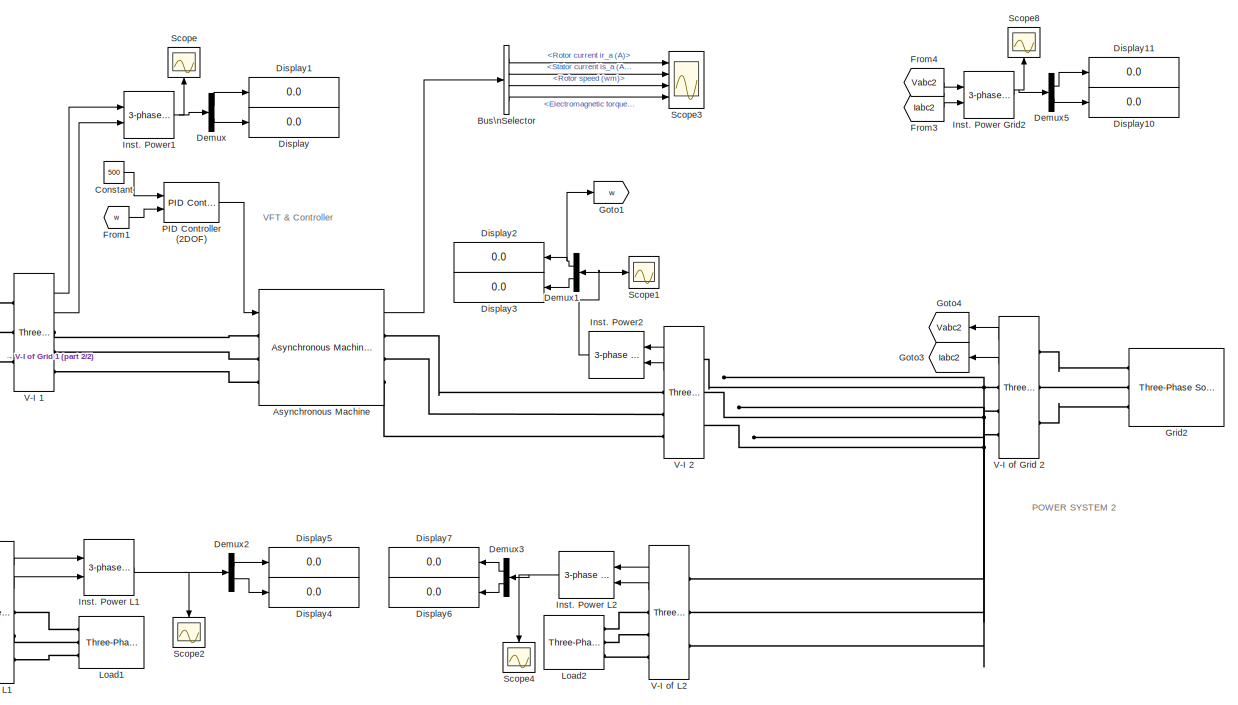
[diagram: root canvas - part 1/2, right side, full height]
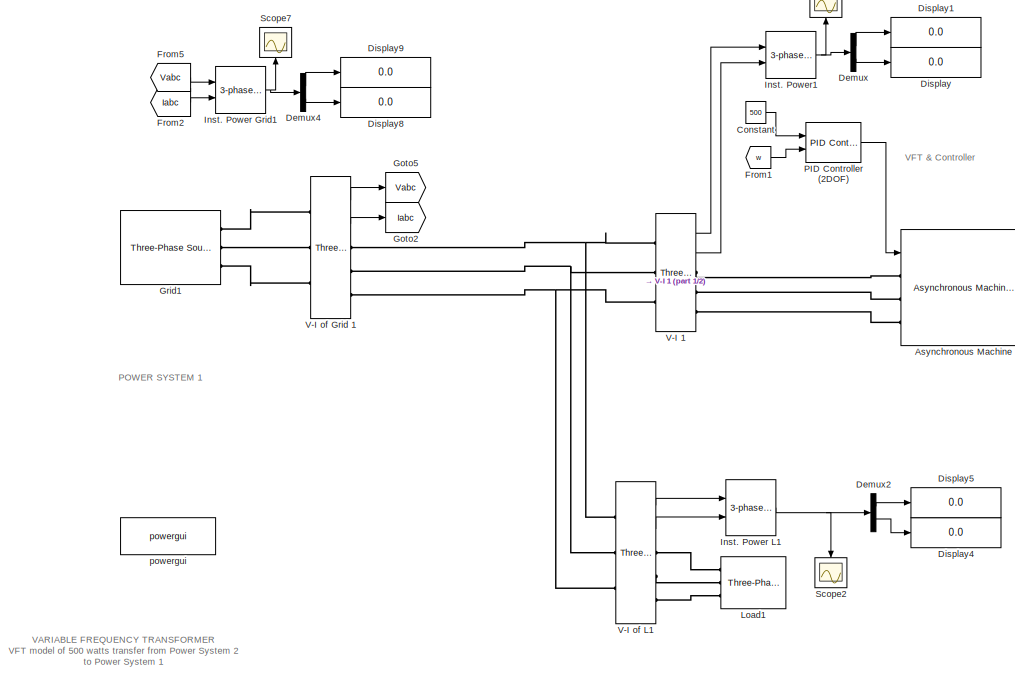
[diagram: root canvas - part 2/2, left side, full height]
MODEL VFT
KIND model
BLOCK [Reference] Asynchronous Machine  REF=powerlib/Machines/Asynchronous Machine\nSI Units
  AttributesFormatString = \\n
  FunctionWithSeparateData = off
  InitialConditions = [1 0 0 0 0 0 0 0]
  IterativeModel = Forward Euler
  Lm = 0.2037
  LoadFlowParameters = 1492000
  Mechanical = [ 63.87 0 2]
  MechanicalLoad = Speed w
  NominalParameters = [3730 220 60 ]
  PolePairs = 2
  Ports = [1, 1, 0, 0, 0, 3, 3]
  PresetModel = No
  RTWMemSecDataConstants = Inherit from model
  RTWMemSecDataInternal = Inherit from model
  RTWMemSecDataParameters = Inherit from model
  RTWMemSecFuncExecute = Inherit from model
  RTWMemSecFuncInitTerm = Inherit from model
  ReferenceFrame = Rotor
  Rotor = [ 1.15 0.005974]
  RotorType = Wound
  SID = 3
  Saturation = [14.03593122, 27.81365428, 53.79336849, 72.68890987, 97.98006896, 148.6815601, 215.7428561, 302.9841135, 428.7778367 ; 230, 322, 414, 460, 506, 552, 598, 644, 690]
  ShowDetailedParameters = on
  ShowPortLabels = FromPortIcon
  SimulateSaturation = off
  SourceBlock = powerlib/Machines/Asynchronous Machine\nSI Units
  SourceProductBaseCode = PS
  SourceProductName = Simscape Electrical
  SourceType = Asynchronous Machine
  Stator = [ 1.115 0.005974]
  SystemSampleTime = -1
  TsBlock = -1
  TsPowergui = 0
  Units = SI
BLOCK [BusSelector] Bus\nSelector
  OutputAsBus = off
  OutputSignals = Rotor measurements.Rotor current ir_a (A),Stator measurements.Stator current is_a (A),Mechanical.Rotor speed (wm),Mechanical.Electromagnetic torque Te (N*m)
  Ports = [1, 4]
  SID = 4
BLOCK [Constant] Constant
  SID = 71
  Value = 500
BLOCK [Demux] Demux
  DisplayOption = bar
  Outputs = 2
  Ports = [1, 2]
  SID = 5
BLOCK [Demux] Demux1
  DisplayOption = bar
  Outputs = 2
  Ports = [1, 2]
  SID = 6
BLOCK [Demux] Demux2
  DisplayOption = bar
  Outputs = 2
  Ports = [1, 2]
  SID = 7
BLOCK [Demux] Demux3
  DisplayOption = bar
  Outputs = 2
  Ports = [1, 2]
  SID = 8
BLOCK [Demux] Demux4
  DisplayOption = bar
  Outputs = 2
  Ports = [1, 2]
  SID = 9
BLOCK [Demux] Demux5
  DisplayOption = bar
  Outputs = 2
  Ports = [1, 2]
  SID = 10
BLOCK [Display] Display
  Decimation = 1
  Ports = [1]
  SID = 11
BLOCK [Display] Display1
  Decimation = 1
  Ports = [1]
  SID = 12
BLOCK [Display] Display10
  Decimation = 1
  Ports = [1]
  SID = 13
BLOCK [Display] Display11
  Decimation = 1
  Ports = [1]
  SID = 14
BLOCK [Display] Display2
  Decimation = 1
  Ports = [1]
  SID = 16
BLOCK [Display] Display3
  Decimation = 1
  Ports = [1]
  SID = 17
BLOCK [Display] Display4
  Decimation = 1
  Ports = [1]
  SID = 18
BLOCK [Display] Display5
  Decimation = 1
  Ports = [1]
  SID = 19
BLOCK [Display] Display6
  Decimation = 1
  Ports = [1]
  SID = 20
BLOCK [Display] Display7
  Decimation = 1
  Ports = [1]
  SID = 21
BLOCK [Display] Display8
  Decimation = 1
  Ports = [1]
  SID = 22
BLOCK [Display] Display9
  Decimation = 1
  Ports = [1]
  SID = 23
BLOCK [From] From1
  GotoTag = w
  SID = 70
BLOCK [From] From2
  GotoTag = Iabc
  SID = 26
BLOCK [From] From3
  GotoTag = Iabc2
  SID = 27
BLOCK [From] From4
  GotoTag = Vabc2
  SID = 28
BLOCK [From] From5
  GotoTag = Vabc
  SID = 29
BLOCK [Goto] Goto1
  GotoTag = w
  SID = 74
BLOCK [Goto] Goto2
  GotoTag = Iabc
  SID = 34
BLOCK [Goto] Goto3
  GotoTag = Iabc2
  SID = 35
BLOCK [Goto] Goto4
  GotoTag = Vabc2
  SID = 36
BLOCK [Goto] Goto5
  GotoTag = Vabc
  SID = 37
BLOCK [Reference] Grid1  REF=powerlib/Electrical\nSources/Three-Phase Source
  BaseVoltage = 25e3
  Frequency = 50
  FunctionWithSeparateData = off
  Inductance = 0
  InternalConnection = Yg
  PhaseAngle = 0
  Ports = [0, 0, 0, 0, 0, 0, 3]
  RTWMemSecDataConstants = Inherit from model
  RTWMemSecDataInternal = Inherit from model
  RTWMemSecDataParameters = Inherit from model
  RTWMemSecFuncExecute = Inherit from model
  RTWMemSecFuncInitTerm = Inherit from model
  Resistance = 0.01
  SID = 38
  ShortCircuitLevel = 100e6
  ShowPortLabels = FromPortIcon
  SourceBlock = powerlib/Electrical\nSources/Three-Phase Source
  SourceProductBaseCode = PS
  SourceProductName = Simscape Electrical
  SourceType = Three-Phase Source
  SpecifyImpedance = off
  SystemSampleTime = -1
  Voltage = 220
  XRratio = 7
BLOCK [Reference] Grid2  REF=powerlib/Electrical\nSources/Three-Phase Source
  BaseVoltage = 25e3
  Frequency = 50
  FunctionWithSeparateData = off
  Inductance = 0
  InternalConnection = Yg
  PhaseAngle = 0
  Ports = [0, 0, 0, 0, 0, 0, 3]
  RTWMemSecDataConstants = Inherit from model
  RTWMemSecDataInternal = Inherit from model
  RTWMemSecDataParameters = Inherit from model
  RTWMemSecFuncExecute = Inherit from model
  RTWMemSecFuncInitTerm = Inherit from model
  Resistance = 0.01
  SID = 39
  ShortCircuitLevel = 100e6
  ShowPortLabels = FromPortIcon
  SourceBlock = powerlib/Electrical\nSources/Three-Phase Source
  SourceProductBaseCode = PS
  SourceProductName = Simscape Electrical
  SourceType = Three-Phase Source
  SpecifyImpedance = off
  SystemSampleTime = -1
  Voltage = 220
  XRratio = 7
BLOCK [Reference] Inst. Power Grid1  REF=powerlib_extras/Measurements/3-phase \nInstantaneous \nActive & Reactive Power
  FunctionWithSeparateData = off
  Ports = [2, 1]
  RTWMemSecDataConstants = Inherit from model
  RTWMemSecDataInternal = Inherit from model
  RTWMemSecDataParameters = Inherit from model
  RTWMemSecFuncExecute = Inherit from model
  RTWMemSecFuncInitTerm = Inherit from model
  SID = 40
  ShowPortLabels = FromPortIcon
  SourceBlock = powerlib_extras/Measurements/3-phase \nInstantaneous \nActive & Reactive Power
  SourceProductBaseCode = PS
  SourceProductName = Simscape Electrical
  SourceType = 3-phase instantaneous active and reactive power
  SystemSampleTime = -1
BLOCK [Reference] Inst. Power Grid2  REF=powerlib_extras/Measurements/3-phase \nInstantaneous \nActive & Reactive Power
  FunctionWithSeparateData = off
  Ports = [2, 1]
  RTWMemSecDataConstants = Inherit from model
  RTWMemSecDataInternal = Inherit from model
  RTWMemSecDataParameters = Inherit from model
  RTWMemSecFuncExecute = Inherit from model
  RTWMemSecFuncInitTerm = Inherit from model
  SID = 41
  ShowPortLabels = FromPortIcon
  SourceBlock = powerlib_extras/Measurements/3-phase \nInstantaneous \nActive & Reactive Power
  SourceProductBaseCode = PS
  SourceProductName = Simscape Electrical
  SourceType = 3-phase instantaneous active and reactive power
  SystemSampleTime = -1
BLOCK [Reference] Inst. Power L1  REF=powerlib_extras/Measurements/3-phase \nInstantaneous \nActive & Reactive Power
  FunctionWithSeparateData = off
  Ports = [2, 1]
  RTWMemSecDataConstants = Inherit from model
  RTWMemSecDataInternal = Inherit from model
  RTWMemSecDataParameters = Inherit from model
  RTWMemSecFuncExecute = Inherit from model
  RTWMemSecFuncInitTerm = Inherit from model
  SID = 42
  ShowPortLabels = FromPortIcon
  SourceBlock = powerlib_extras/Measurements/3-phase \nInstantaneous \nActive & Reactive Power
  SourceProductBaseCode = PS
  SourceProductName = Simscape Electrical
  SourceType = 3-phase instantaneous active and reactive power
  SystemSampleTime = -1
BLOCK [Reference] Inst. Power L2  REF=powerlib_extras/Measurements/3-phase \nInstantaneous \nActive & Reactive Power
  FunctionWithSeparateData = off
  Ports = [2, 1]
  RTWMemSecDataConstants = Inherit from model
  RTWMemSecDataInternal = Inherit from model
  RTWMemSecDataParameters = Inherit from model
  RTWMemSecFuncExecute = Inherit from model
  RTWMemSecFuncInitTerm = Inherit from model
  SID = 43
  ShowPortLabels = FromPortIcon
  SourceBlock = powerlib_extras/Measurements/3-phase \nInstantaneous \nActive & Reactive Power
  SourceProductBaseCode = PS
  SourceProductName = Simscape Electrical
  SourceType = 3-phase instantaneous active and reactive power
  SystemSampleTime = -1
BLOCK [Reference] Inst. Power1  REF=powerlib_extras/Measurements/3-phase \nInstantaneous \nActive & Reactive Power
  FunctionWithSeparateData = off
  Ports = [2, 1]
  RTWMemSecDataConstants = Inherit from model
  RTWMemSecDataInternal = Inherit from model
  RTWMemSecDataParameters = Inherit from model
  RTWMemSecFuncExecute = Inherit from model
  RTWMemSecFuncInitTerm = Inherit from model
  SID = 44
  ShowPortLabels = FromPortIcon
  SourceBlock = powerlib_extras/Measurements/3-phase \nInstantaneous \nActive & Reactive Power
  SourceProductBaseCode = PS
  SourceProductName = Simscape Electrical
  SourceType = 3-phase instantaneous active and reactive power
  SystemSampleTime = -1
BLOCK [Reference] Inst. Power2  REF=powerlib_extras/Measurements/3-phase \nInstantaneous \nActive & Reactive Power
  FunctionWithSeparateData = off
  Ports = [2, 1]
  RTWMemSecDataConstants = Inherit from model
  RTWMemSecDataInternal = Inherit from model
  RTWMemSecDataParameters = Inherit from model
  RTWMemSecFuncExecute = Inherit from model
  RTWMemSecFuncInitTerm = Inherit from model
  SID = 45
  ShowPortLabels = FromPortIcon
  SourceBlock = powerlib_extras/Measurements/3-phase \nInstantaneous \nActive & Reactive Power
  SourceProductBaseCode = PS
  SourceProductName = Simscape Electrical
  SourceType = 3-phase instantaneous active and reactive power
  SystemSampleTime = -1
BLOCK [Reference] Load1  REF=powerlib/Elements/Three-Phase\nSeries RLC Load
  ActivePower = 1000
  AttributesFormatString = \\n
  CapacitivePower = 0
  Configuration = Y (grounded)
  InductivePower = 0
  LConnTagsString = A|B|C
  LeftPortType = p1
  Measurements = None
  NominalFrequency = 50
  NominalVoltage = 220
  PhysicalDomain = powersysdomain
  Ports = [0, 0, 0, 0, 0, 3]
  RightPortType = p1
  SID = 46
  SourceBlock = powerlib/Elements/Three-Phase\nSeries RLC Load
  SourceProductBaseCode = PS
  SourceProductName = Simscape Electrical
  SourceType = Three-Phase Series RLC Load
  SubClassName = unknown
BLOCK [Reference] Load2  REF=powerlib/Elements/Three-Phase\nSeries RLC Load
  ActivePower = 4000
  AttributesFormatString = \\n
  CapacitivePower = 0
  Configuration = Y (grounded)
  InductivePower = 0
  LConnTagsString = A|B|C
  LeftPortType = p1
  Measurements = None
  NominalFrequency = 50
  NominalVoltage = 220
  PhysicalDomain = powersysdomain
  Ports = [0, 0, 0, 0, 0, 3]
  RightPortType = p1
  SID = 47
  SourceBlock = powerlib/Elements/Three-Phase\nSeries RLC Load
  SourceProductBaseCode = PS
  SourceProductName = Simscape Electrical
  SourceType = Three-Phase Series RLC Load
  SubClassName = unknown
BLOCK [Reference] PID Controller (2DOF)  REF=simulink/Continuous/PID Controller (2DOF)
  AntiWindupMode = none
  Controller = PID
  D = 0
  DOutDataTypeStr = Inherit: Inherit via internal rule
  DOutMax = []
  DOutMin = []
  DParamDataTypeStr = Inherit: Inherit via internal rule
  DParamMax = []
  DParamMin = []
  ExternalReset = none
  FilterContinuousStateAttributes = ''
  FilterMethod = Forward Euler
  FilterOutDataTypeStr = Inherit: Inherit via internal rule
  FilterOutMax = []
  FilterOutMin = []
  FilterRTWStateStorageClass = Auto
  FilterStateMustResolveToSignalObject = off
  Form = Parallel
  FunctionWithSeparateData = off
  I = .01
  IOutDataTypeStr = Inherit: Inherit via internal rule
  IOutMax = []
  IOutMin = []
  IParamDataTypeStr = Inherit: Inherit via internal rule
  IParamMax = []
  IParamMin = []
  IgnoreLimit = off
  InitialConditionForFilter = 0
  InitialConditionForIntegrator = 0
  InitialConditionSource = internal
  IntegratorContinuousStateAttributes = ''
  IntegratorMethod = Forward Euler
  IntegratorOutDataTypeStr = Inherit: Inherit via internal rule
  IntegratorOutMax = []
  IntegratorOutMin = []
  IntegratorRTWStateStorageClass = Auto
  IntegratorStateMustResolveToSignalObject = off
  Kb = 1
  KbOutDataTypeStr = Inherit: Inherit via internal rule
  KbOutMax = []
  KbOutMin = []
  KbParamDataTypeStr = Inherit: Inherit via internal rule
  KbParamMax = []
  KbParamMin = []
  Kt = 1
  KtOutDataTypeStr = Inherit: Inherit via internal rule
  KtOutMax = []
  KtOutMin = []
  KtParamDataTypeStr = Inherit: Inherit via internal rule
  KtParamMax = []
  KtParamMin = []
  LimitOutput = off
  LinearizeAsGain = on
  LockScale = off
  LowerSaturationLimit = -inf
  N = 100
  NOutDataTypeStr = Inherit: Inherit via internal rule
  NOutMax = []
  NOutMin = []
  NParamDataTypeStr = Inherit: Inherit via internal rule
  NParamMax = []
  NParamMin = []
  P = .1
  POutDataTypeStr = Inherit: Inherit via internal rule
  POutMax = []
  POutMin = []
  PParamDataTypeStr = Inherit: Inherit via internal rule
  PParamMax = []
  PParamMin = []
  Ports = [2, 1]
  RTWMemSecDataConstants = Inherit from model
  RTWMemSecDataInternal = Inherit from model
  RTWMemSecDataParameters = Inherit from model
  RTWMemSecFuncExecute = Inherit from model
  RTWMemSecFuncInitTerm = Inherit from model
  RndMeth = Floor
  SID = 75
  SampleTime = 1
  SaturateOnIntegerOverflow = off
  SaturationOutDataTypeStr = Inherit: Same as input
  SaturationOutMax = []
  SaturationOutMin = []
  ShowPortLabels = FromPortIcon
  SourceBlock = simulink/Continuous/PID Controller (2DOF)
  SourceProductBaseCode = SL
  SourceProductName = Simulink
  SourceType = PID 2dof
  Sum1AccumDataTypeStr = Inherit: Inherit via internal rule
  Sum1OutDataTypeStr = Inherit: Inherit via internal rule
  Sum1OutMax = []
  Sum1OutMin = []
  Sum2AccumDataTypeStr = Inherit: Inherit via internal rule
  Sum2OutDataTypeStr = Inherit: Inherit via internal rule
  Sum2OutMax = []
  Sum2OutMin = []
  Sum3AccumDataTypeStr = Inherit: Inherit via internal rule
  Sum3OutDataTypeStr = Inherit: Inherit via internal rule
  Sum3OutMax = []
  Sum3OutMin = []
  SumAccumDataTypeStr = Inherit: Inherit via internal rule
  SumDAccumDataTypeStr = Inherit: Inherit via internal rule
  SumDOutDataTypeStr = Inherit: Inherit via internal rule
  SumDOutMax = []
  SumDOutMin = []
  SumI1AccumDataTypeStr = Inherit: Inherit via internal rule
  SumI1OutDataTypeStr = Inherit: Inherit via internal rule
  SumI1OutMax = []
  SumI1OutMin = []
  SumI2AccumDataTypeStr = Inherit: Inherit via internal rule
  SumI2OutDataTypeStr = Inherit: Inherit via internal rule
  SumI2OutMax = []
  SumI2OutMin = []
  SumI3AccumDataTypeStr = Inherit: Inherit via internal rule
  SumI3OutDataTypeStr = Inherit: Inherit via internal rule
  SumI3OutMax = []
  SumI3OutMin = []
  SumOutDataTypeStr = Inherit: Inherit via internal rule
  SumOutMax = []
  SumOutMin = []
  SystemSampleTime = -1
  TimeDomain = Continuous-time
  TrackingMode = off
  UpperSaturationLimit = inf
  ZeroCross = on
  b = 1
  bOutDataTypeStr = Inherit: Inherit via internal rule
  bOutMax = []
  bOutMin = []
  bParamDataTypeStr = Inherit: Inherit via internal rule
  bParamMax = []
  bParamMin = []
  c = 1
  cOutDataTypeStr = Inherit: Inherit via internal rule
  cOutMax = []
  cOutMin = []
  cParamDataTypeStr = Inherit: Inherit via internal rule
  cParamMax = []
  cParamMin = []
BLOCK [Scope] Scope
  Floating = off
  NumInputPorts = 1
  Ports = [1]
  SID = 48
  ScopeSpecificationString = C++SS(StrPVP('Location','[5, 48, 1367, 737]'),StrPVP('Open','off'),MxPVP('AxesTitles',54,'struct(''axes1'',''%<SignalLabel>'')'),StrPVP('DataFormat','StructureWithTime'),StrPVP('BlockParamSampleTime','0'),StrPVP('LimitDataPoints','on'),StrPVP('Decimation','1'),StrPVP('BlockParamSampleInput','off'))
BLOCK [Scope] Scope1
  Floating = off
  NumInputPorts = 1
  Ports = [1]
  SID = 49
  ScopeSpecificationString = C++SS(StrPVP('Location','[1, 48, 1367, 737]'),StrPVP('Open','off'),MxPVP('AxesTitles',54,'struct(''axes1'',''%<SignalLabel>'')'),StrPVP('SaveName','ScopeData1'),StrPVP('DataFormat','StructureWithTime'),StrPVP('BlockParamSampleTime','0'),StrPVP('LimitDataPoints','on'),StrPVP('Decimation','1'),StrPVP('BlockParamSampleInput','off'))
BLOCK [Scope] Scope2
  Floating = off
  NumInputPorts = 1
  Ports = [1]
  SID = 50
  ScopeSpecificationString = C++SS(StrPVP('Location','[188, 390, 512, 629]'),StrPVP('Open','off'),MxPVP('AxesTitles',54,'struct(''axes1'',''%<SignalLabel>'')'),StrPVP('SaveName','ScopeData3'),StrPVP('DataFormat','StructureWithTime'),StrPVP('BlockParamSampleTime','0'),StrPVP('LimitDataPoints','on'),StrPVP('Decimation','1'),StrPVP('BlockParamSampleInput','off'))
BLOCK [Scope] Scope3
  Floating = off
  NumInputPorts = 4
  Ports = [4]
  SID = 51
  ScopeSpecificationString = C++SS(StrPVP('Location','[5, 49, 1367, 727]'),StrPVP('Open','off'),MxPVP('AxesTitles',54,'struct(''axes1'',''%<SignalLabel>'',''axes2'',''%<SignalLabel>'',''axes3'',''%<SignalLabel>'',''axes4'',''%<SignalLabel>'')'),StrPVP('TimeRange','10'),StrPVP('YMin','-2~-5~-5~-5'),StrPVP('YMax','14~5~5~5'),StrPVP('SaveToWorkspace','on'),StrPVP('SaveName','ScopeData2'),StrPVP('DataFormat','StructureWithTime'),...<+130ch>
BLOCK [Scope] Scope4
  Floating = off
  NumInputPorts = 1
  Ports = [1]
  SID = 52
  ScopeSpecificationString = C++SS(StrPVP('Location','[188, 390, 512, 629]'),StrPVP('Open','off'),MxPVP('AxesTitles',54,'struct(''axes1'',''%<SignalLabel>'')'),StrPVP('SaveName','ScopeData4'),StrPVP('DataFormat','StructureWithTime'),StrPVP('BlockParamSampleTime','0'),StrPVP('LimitDataPoints','on'),StrPVP('Decimation','1'),StrPVP('BlockParamSampleInput','off'))
BLOCK [Scope] Scope7
  Floating = off
  NumInputPorts = 1
  Ports = [1]
  SID = 55
  ScopeSpecificationString = C++SS(StrPVP('Location','[5, 48, 1371, 737]'),StrPVP('Open','off'),MxPVP('AxesTitles',54,'struct(''axes1'',''%<SignalLabel>'')'),StrPVP('SaveName','ScopeData7'),StrPVP('DataFormat','StructureWithTime'),StrPVP('BlockParamSampleTime','0'),StrPVP('LimitDataPoints','on'),StrPVP('Decimation','1'),StrPVP('BlockParamSampleInput','off'))
BLOCK [Scope] Scope8
  Floating = off
  NumInputPorts = 1
  Ports = [1]
  SID = 56
  ScopeSpecificationString = C++SS(StrPVP('Location','[1, 48, 1367, 737]'),StrPVP('Open','off'),MxPVP('AxesTitles',54,'struct(''axes1'',''%<SignalLabel>'')'),StrPVP('SaveName','ScopeData8'),StrPVP('DataFormat','StructureWithTime'),StrPVP('BlockParamSampleTime','0'),StrPVP('LimitDataPoints','on'),StrPVP('Decimation','1'),StrPVP('BlockParamSampleInput','off'))
BLOCK [Reference] V-I 1  REF=powerlib/Measurements/Three-Phase\nV-I Measurement
  CurrentMeasurement = yes
  FunctionWithSeparateData = off
  Ipu = off
  LabelI = Iabc
  LabelV = Vabc
  OutputType = Complex
  PSBequivalent = 0
  Pbase = 100e6
  PhasorSimulation = off
  Ports = [0, 2, 0, 0, 0, 3, 3]
  RTWMemSecDataConstants = Inherit from model
  RTWMemSecDataInternal = Inherit from model
  RTWMemSecDataParameters = Inherit from model
  RTWMemSecFuncExecute = Inherit from model
  RTWMemSecFuncInitTerm = Inherit from model
  SID = 58
  SetLabelI = off
  SetLabelV = off
  ShowPortLabels = FromPortIcon
  SourceBlock = powerlib/Measurements/Three-Phase\nV-I Measurement
  SourceProductBaseCode = PS
  SourceProductName = Simscape Electrical
  SourceType = Three-Phase VI Measurement
  SystemSampleTime = -1
  Vbase = 500e3
  VoltageMeasurement = phase-to-ground
  Vpu = off
  VpuLL = off
BLOCK [Reference] V-I 2  REF=powerlib/Measurements/Three-Phase\nV-I Measurement
  CurrentMeasurement = yes
  FunctionWithSeparateData = off
  Ipu = off
  LabelI = Iabc
  LabelV = Vabc
  OutputType = Complex
  PSBequivalent = 0
  Pbase = 100e6
  PhasorSimulation = off
  Ports = [0, 2, 0, 0, 0, 3, 3]
  RTWMemSecDataConstants = Inherit from model
  RTWMemSecDataInternal = Inherit from model
  RTWMemSecDataParameters = Inherit from model
  RTWMemSecFuncExecute = Inherit from model
  RTWMemSecFuncInitTerm = Inherit from model
  SID = 59
  SetLabelI = off
  SetLabelV = off
  ShowPortLabels = FromPortIcon
  SourceBlock = powerlib/Measurements/Three-Phase\nV-I Measurement
  SourceProductBaseCode = PS
  SourceProductName = Simscape Electrical
  SourceType = Three-Phase VI Measurement
  SystemSampleTime = -1
  Vbase = 500e3
  VoltageMeasurement = phase-to-ground
  Vpu = off
  VpuLL = off
BLOCK [Reference] V-I of Grid 1  REF=powerlib/Measurements/Three-Phase\nV-I Measurement
  CurrentMeasurement = yes
  FunctionWithSeparateData = off
  Ipu = off
  LabelI = Iabc
  LabelV = Vabc
  OutputType = Complex
  PSBequivalent = 0
  Pbase = 100e6
  PhasorSimulation = off
  Ports = [0, 2, 0, 0, 0, 3, 3]
  RTWMemSecDataConstants = Inherit from model
  RTWMemSecDataInternal = Inherit from model
  RTWMemSecDataParameters = Inherit from model
  RTWMemSecFuncExecute = Inherit from model
  RTWMemSecFuncInitTerm = Inherit from model
  SID = 62
  SetLabelI = off
  SetLabelV = off
  ShowPortLabels = FromPortIcon
  SourceBlock = powerlib/Measurements/Three-Phase\nV-I Measurement
  SourceProductBaseCode = PS
  SourceProductName = Simscape Electrical
  SourceType = Three-Phase VI Measurement
  SystemSampleTime = -1
  Vbase = 500e3
  VoltageMeasurement = phase-to-ground
  Vpu = off
  VpuLL = off
BLOCK [Reference] V-I of Grid 2  REF=powerlib/Measurements/Three-Phase\nV-I Measurement
  CurrentMeasurement = yes
  FunctionWithSeparateData = off
  Ipu = off
  LabelI = Iabc
  LabelV = Vabc
  OutputType = Complex
  PSBequivalent = 0
  Pbase = 100e6
  PhasorSimulation = off
  Ports = [0, 2, 0, 0, 0, 3, 3]
  RTWMemSecDataConstants = Inherit from model
  RTWMemSecDataInternal = Inherit from model
  RTWMemSecDataParameters = Inherit from model
  RTWMemSecFuncExecute = Inherit from model
  RTWMemSecFuncInitTerm = Inherit from model
  SID = 63
  SetLabelI = off
  SetLabelV = off
  ShowPortLabels = FromPortIcon
  SourceBlock = powerlib/Measurements/Three-Phase\nV-I Measurement
  SourceProductBaseCode = PS
  SourceProductName = Simscape Electrical
  SourceType = Three-Phase VI Measurement
  SystemSampleTime = -1
  Vbase = 500e3
  VoltageMeasurement = phase-to-ground
  Vpu = off
  VpuLL = off
BLOCK [Reference] V-I of L1   REF=powerlib/Measurements/Three-Phase\nV-I Measurement
  CurrentMeasurement = yes
  FunctionWithSeparateData = off
  Ipu = off
  LabelI = Iabc
  LabelV = Vabc
  OutputType = Complex
  PSBequivalent = 0
  Pbase = 100e6
  PhasorSimulation = off
  Ports = [0, 2, 0, 0, 0, 3, 3]
  RTWMemSecDataConstants = Inherit from model
  RTWMemSecDataInternal = Inherit from model
  RTWMemSecDataParameters = Inherit from model
  RTWMemSecFuncExecute = Inherit from model
  RTWMemSecFuncInitTerm = Inherit from model
  SID = 64
  SetLabelI = off
  SetLabelV = off
  ShowPortLabels = FromPortIcon
  SourceBlock = powerlib/Measurements/Three-Phase\nV-I Measurement
  SourceProductBaseCode = PS
  SourceProductName = Simscape Electrical
  SourceType = Three-Phase VI Measurement
  SystemSampleTime = -1
  Vbase = 500e3
  VoltageMeasurement = phase-to-ground
  Vpu = off
  VpuLL = off
BLOCK [Reference] V-I of L2  REF=powerlib/Measurements/Three-Phase\nV-I Measurement
  CurrentMeasurement = yes
  FunctionWithSeparateData = off
  Ipu = off
  LabelI = Iabc
  LabelV = Vabc
  OutputType = Complex
  PSBequivalent = 0
  Pbase = 100e6
  PhasorSimulation = off
  Ports = [0, 2, 0, 0, 0, 3, 3]
  RTWMemSecDataConstants = Inherit from model
  RTWMemSecDataInternal = Inherit from model
  RTWMemSecDataParameters = Inherit from model
  RTWMemSecFuncExecute = Inherit from model
  RTWMemSecFuncInitTerm = Inherit from model
  SID = 65
  SetLabelI = off
  SetLabelV = off
  ShowPortLabels = FromPortIcon
  SourceBlock = powerlib/Measurements/Three-Phase\nV-I Measurement
  SourceProductBaseCode = PS
  SourceProductName = Simscape Electrical
  SourceType = Three-Phase VI Measurement
  SystemSampleTime = -1
  Vbase = 500e3
  VoltageMeasurement = phase-to-ground
  Vpu = off
  VpuLL = off
BLOCK [Reference] powergui  REF=powerlib/powergui
  DisableRonSwitches = off
  DisableSnubberDevices = off
  DisableVfSwitches = off
  DisplayEquations = off
  DisplayStyle = 2
  EnableUseOfTLC = off
  Frange = [0:2:500]
  FreqAxis = off
  FunctionMessages = off
  FunctionWithSeparateData = off
  HookPort = off
  Interpol = off
  MaxFrequency = 1000
  Ports = []
  Priority = 1
  RTWMemSecDataConstants = Inherit from model
  RTWMemSecDataInternal = Inherit from model
  RTWMemSecDataParameters = Inherit from model
  RTWMemSecFuncExecute = Inherit from model
  RTWMemSecFuncInitTerm = Inherit from model
  ResistiveCurrentMeasurement = off
  RestoreLinks = warning
  RmsSteady = 1
  SID = 66
  SPID = off
  SampleTime = 50e-5
  ShowGrid = off
  ShowPortLabels = FromPortIcon
  SourceBlock = powerlib/powergui
  SourceProductBaseCode = PS
  SourceProductName = Simscape Electrical
  SourceType = PSB option menu block
  StartTime = 2.5
  SwTol = 0
  SystemSampleTime = -1
  Ts = 0
  UserData = DataTag0
  UserDataPersistent = on
  Xlog = on
  Ylog = off
  ZoomFFT = off
  cycles = 1
  display = off
  echomessages = off
  frequency = 60
  frequencyindice = 60
  frequencyindicesteady = 1
  fundamental = 50
  methode = off
  save = off
  structure = ScopeData8
  variable = ZData
  x0status = blocks
ANNOTATION (root): POWER SYSTEM 1
ANNOTATION (root): POWER SYSTEM 2
ANNOTATION (root): VARIABLE FREQUENCY TRANSFORMER\nVFT model of 500 watts transfer from Power System 2 \nto Power System 1
ANNOTATION (root): VFT & Controller
LINE Asynchronous Machine:1 -> Bus\nSelector:1
LINE Bus\nSelector:1 -> Scope3:1
LINE Bus\nSelector:2 -> Scope3:2
LINE Bus\nSelector:3 -> Scope3:3
LINE Bus\nSelector:4 -> Scope3:4
LINE Constant:1 -> PID Controller (2DOF):1
NET Demux1:1 -> Display2:1, Goto1:1
LINE Demux1:2 -> Display3:1
LINE Demux2:1 -> Display5:1
LINE Demux2:2 -> Display4:1
LINE Demux3:1 -> Display7:1
LINE Demux3:2 -> Display6:1
LINE Demux4:1 -> Display9:1
LINE Demux4:2 -> Display8:1
LINE Demux5:1 -> Display11:1
LINE Demux5:2 -> Display10:1
LINE Demux:1 -> Display1:1
LINE Demux:2 -> Display:1
LINE From1:1 -> PID Controller (2DOF):2
LINE From2:1 -> Inst. Power Grid1:2
LINE From3:1 -> Inst. Power Grid2:2
LINE From4:1 -> Inst. Power Grid2:1
LINE From5:1 -> Inst. Power Grid1:1
NET Inst. Power Grid1:1 -> Demux4:1, Scope7:1
NET Inst. Power Grid2:1 -> Demux5:1, Scope8:1
NET Inst. Power L1:1 -> Demux2:1, Scope2:1
NET Inst. Power L2:1 -> Demux3:1, Scope4:1
NET Inst. Power1:1 -> Demux:1, Scope:1
NET Inst. Power2:1 -> Demux1:1, Scope1:1
LINE PID Controller (2DOF):1 -> Asynchronous Machine:1
LINE V-I 1:1 -> Inst. Power1:1
LINE V-I 1:2 -> Inst. Power1:2
LINE V-I 2:1 -> Inst. Power2:1
LINE V-I 2:2 -> Inst. Power2:2
LINE V-I of Grid 1:1 -> Goto5:1
LINE V-I of Grid 1:2 -> Goto2:1
LINE V-I of Grid 2:1 -> Goto4:1
LINE V-I of Grid 2:2 -> Goto3:1
LINE V-I of L1 :1 -> Inst. Power L1:1
LINE V-I of L1 :2 -> Inst. Power L1:2
LINE V-I of L2:1 -> Inst. Power L2:1
LINE V-I of L2:2 -> Inst. Power L2:2
PLINE Asynchronous Machine:LConn1 -- V-I 1:RConn1
PLINE Asynchronous Machine:LConn2 -- V-I 1:RConn2
PLINE Asynchronous Machine:LConn3 -- V-I 1:RConn3
PLINE Asynchronous Machine:RConn1 -- V-I 2:RConn1
PLINE Asynchronous Machine:RConn2 -- V-I 2:RConn2
PLINE Asynchronous Machine:RConn3 -- V-I 2:RConn3
PLINE Grid1:RConn1 -- V-I of Grid 1:LConn1
PLINE Grid1:RConn2 -- V-I of Grid 1:LConn2
PLINE Grid1:RConn3 -- V-I of Grid 1:LConn3
PLINE Grid2:RConn1 -- V-I of Grid 2:LConn1
PLINE Grid2:RConn2 -- V-I of Grid 2:LConn2
PLINE Grid2:RConn3 -- V-I of Grid 2:LConn3
PLINE Load1:LConn1 -- V-I of L1 :RConn1
PLINE Load1:LConn2 -- V-I of L1 :RConn2
PLINE Load1:LConn3 -- V-I of L1 :RConn3
PLINE Load2:LConn1 -- V-I of L2:RConn1
PLINE Load2:LConn2 -- V-I of L2:RConn2
PLINE Load2:LConn3 -- V-I of L2:RConn3
PNET net1: V-I 1:LConn1 -- V-I of Grid 1:RConn1 -- V-I of L1 :LConn1
PNET net2: V-I 1:LConn2 -- V-I of Grid 1:RConn2 -- V-I of L1 :LConn2
PNET net3: V-I 1:LConn3 -- V-I of Grid 1:RConn3 -- V-I of L1 :LConn3
PNET net4: V-I 2:LConn1 -- V-I of Grid 2:RConn1 -- V-I of L2:LConn1
PNET net5: V-I 2:LConn2 -- V-I of Grid 2:RConn2 -- V-I of L2:LConn2
PNET net6: V-I 2:LConn3 -- V-I of Grid 2:RConn3 -- V-I of L2:LConn3
note: NET lines group one-source signal fan-out (src -> all destinations, sorted); 1:1 wires keep LINE; PNET lines group multi-terminal physical nets as a canonical sorted terminal list (undirected conserving connections); 2-terminal nets keep the pairwise PLINE form
